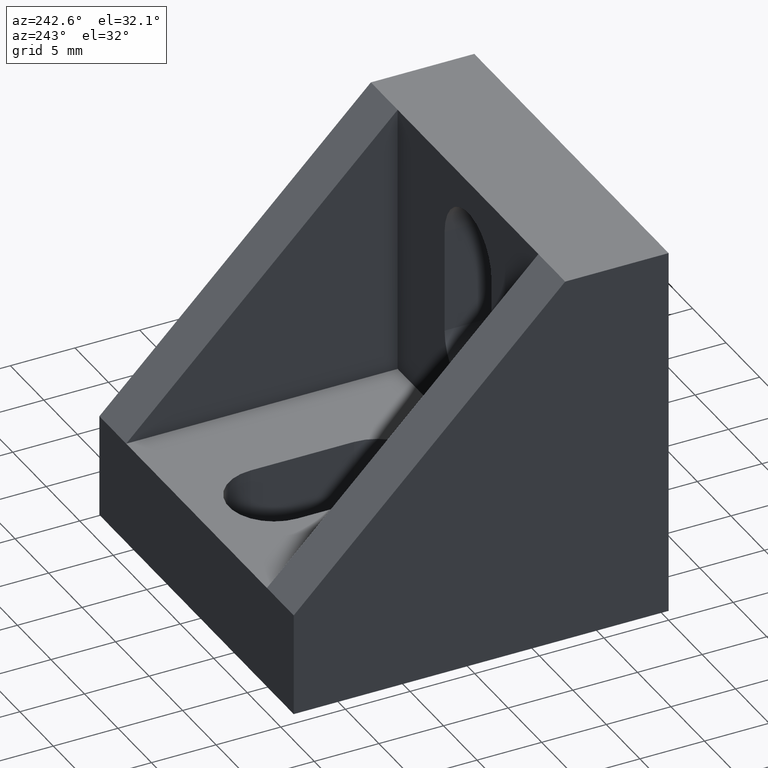
[diagram: clean part render]
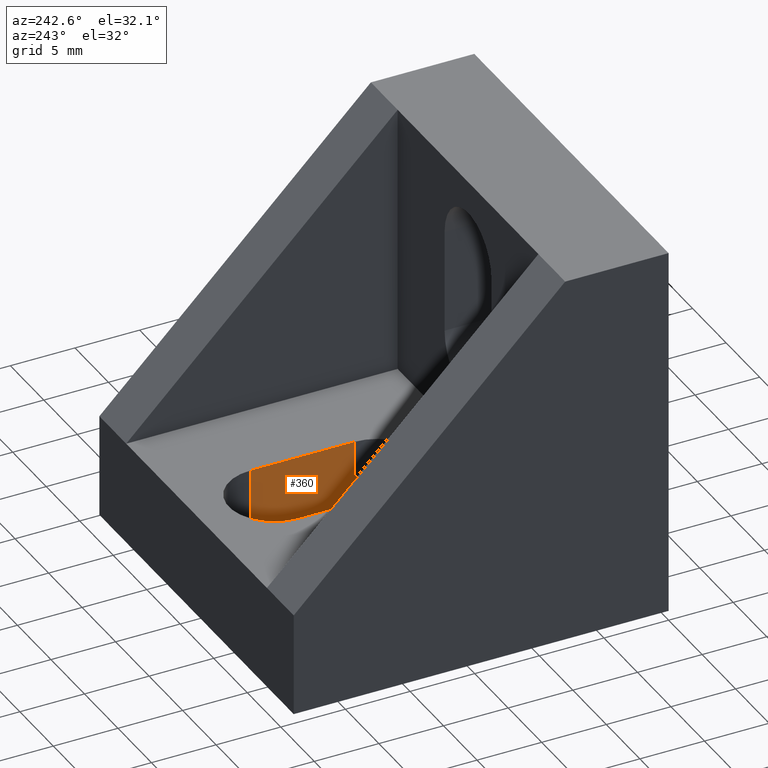
[diagram: same view with one face highlighted and labeled with its STEP entity id]
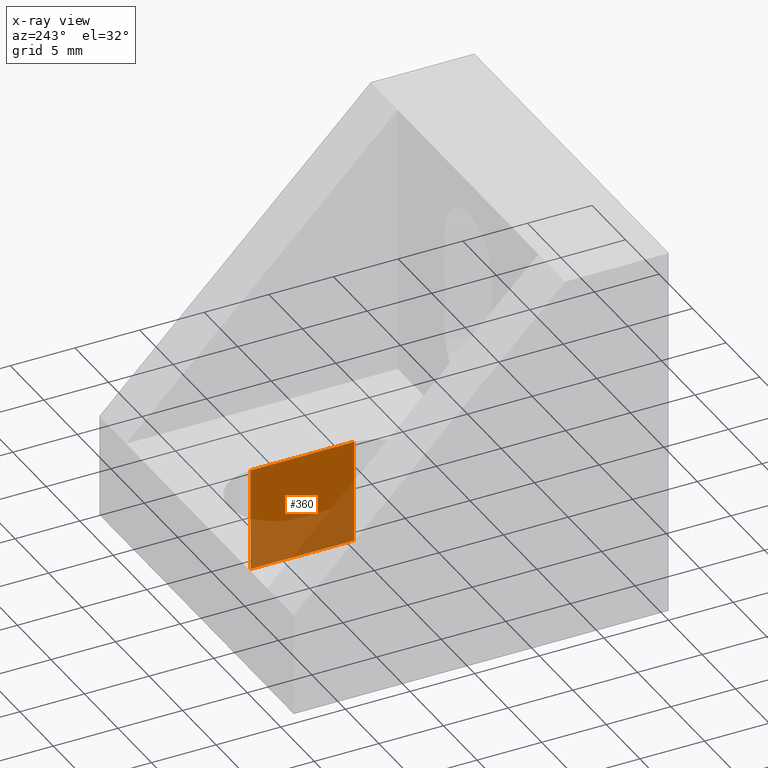
[diagram: x-ray of the same camera — body ghosted, the highlighted face saturated]
A machine part, auxiliary view. The second image highlights one B-rep face of the part: STEP entity #360.
The next image is the same camera in x-ray: the body ghosted, the highlighted face saturated — about 43% of this face is hidden behind the body in this view.
In plain terms, the highlighted planar face has unit normal (1, 0, 0).
Its self-contained STEP definition (entity closure, byte-faithful):
#20=PLANE('',#386);
#38=FACE_OUTER_BOUND('',#58,.T.);
#58=EDGE_LOOP('',(#265,#266,#267,#268));
#79=LINE('',#513,#121);
#84=LINE('',#528,#126);
#85=LINE('',#530,#127);
#86=LINE('',#531,#128);
#121=VECTOR('',#413,8.);
#126=VECTOR('',#428,8.);
#127=VECTOR('',#431,8.);
#128=VECTOR('',#432,8.);
#171=VERTEX_POINT('',#509);
#173=VERTEX_POINT('',#512);
#177=VERTEX_POINT('',#524);
#178=VERTEX_POINT('',#526);
#204=EDGE_CURVE('',#173,#171,#79,.T.);
#212=EDGE_CURVE('',#178,#177,#84,.T.);
#213=EDGE_CURVE('',#177,#171,#85,.T.);
#214=EDGE_CURVE('',#173,#178,#86,.T.);
#265=ORIENTED_EDGE('',*,*,#213,.F.);
#266=ORIENTED_EDGE('',*,*,#212,.F.);
#267=ORIENTED_EDGE('',*,*,#214,.F.);
#268=ORIENTED_EDGE('',*,*,#204,.T.);
#360=ADVANCED_FACE('',(#38),#20,.F.);
#386=AXIS2_PLACEMENT_3D('',#529,#429,#430);
#413=DIRECTION('',(0.,-5.1044736764375E-17,1.));
#428=DIRECTION('',(0.,-5.1044736764375E-17,1.));
#429=DIRECTION('center_axis',(1.,0.,0.));
#430=DIRECTION('ref_axis',(0.,1.,6.12323399573676E-17));
#431=DIRECTION('',(0.,-1.,0.));
#432=DIRECTION('',(0.,1.,6.12323399573676E-17));
#509=CARTESIAN_POINT('',(18.,15.,8.));
#512=CARTESIAN_POINT('',(18.,15.,9.18485099360515E-16));
#513=CARTESIAN_POINT('',(18.,15.,9.18485099360515E-16));
#524=CARTESIAN_POINT('',(18.,23.,8.));
#526=CARTESIAN_POINT('',(18.,23.,1.40834381901946E-15));
#528=CARTESIAN_POINT('',(18.,23.,1.40834381901946E-15));
#529=CARTESIAN_POINT('Origin',(18.,15.,9.18485099360515E-16));
#530=CARTESIAN_POINT('',(18.,16.75,8.));
#531=CARTESIAN_POINT('',(18.,7.5,4.59242549680258E-16));